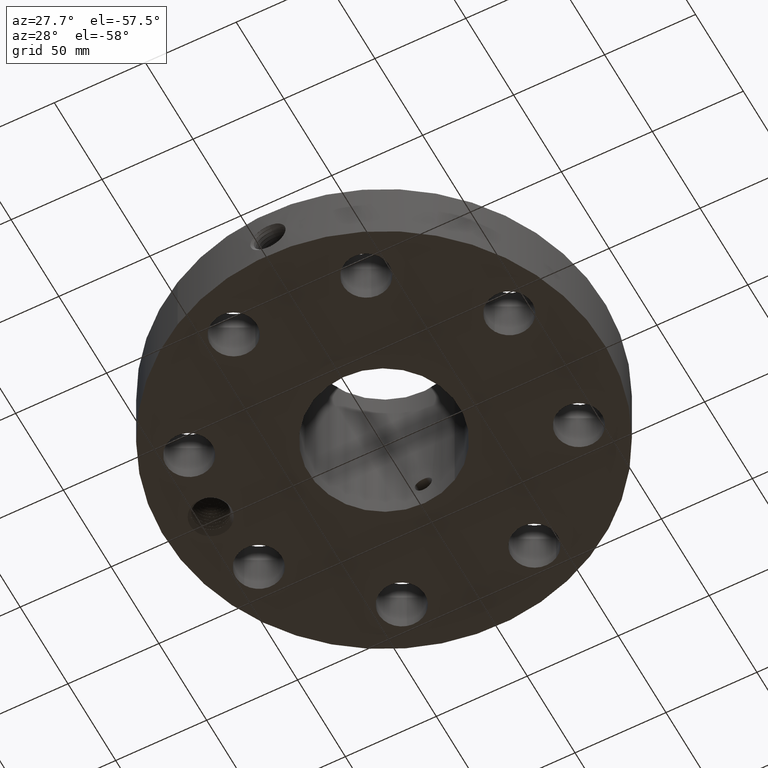
[diagram: clean part render]
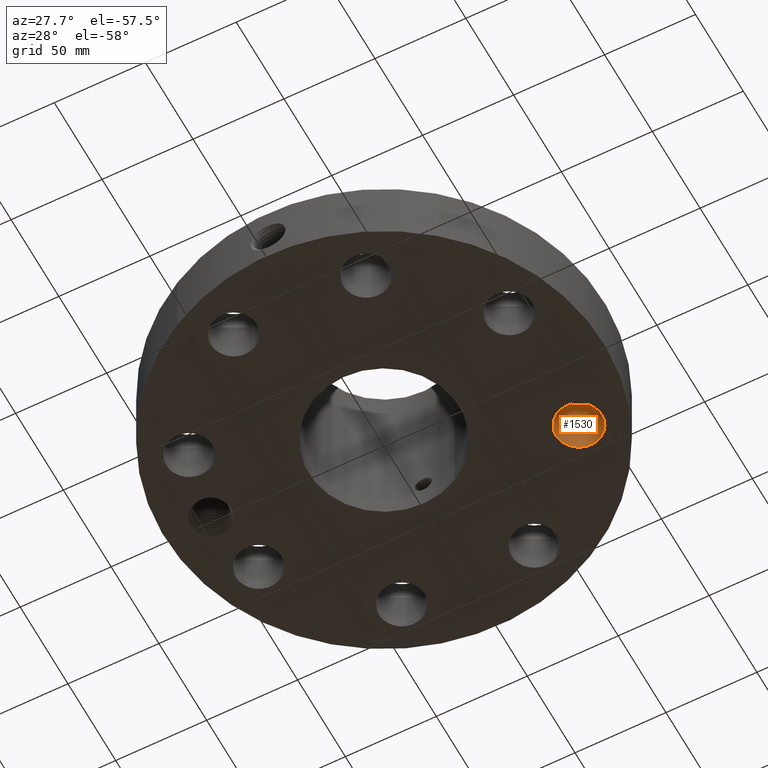
[diagram: same view with one face highlighted and labeled with its STEP entity id]
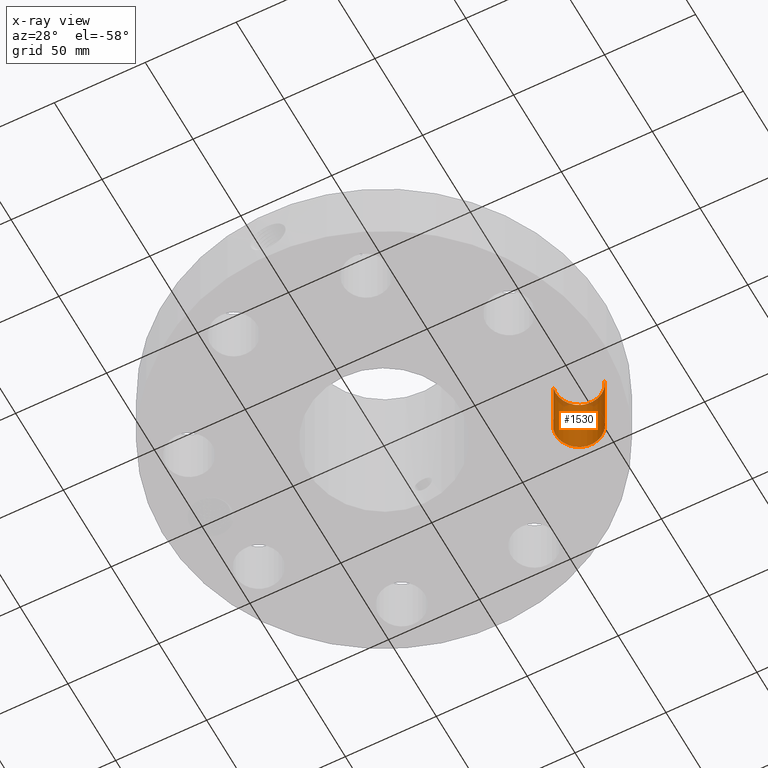
[diagram: x-ray of the same camera — body ghosted, the highlighted face saturated]
A machine part, auxiliary view. The second image highlights one B-rep face of the part: STEP entity #1530.
The next image is the same camera in x-ray: the body ghosted, the highlighted face saturated — about 8% of this face is hidden behind the body in this view.
In plain terms, the highlighted cylindrical surface (edge-blend (fillet) strip) has radius 12.7 mm, axis along (0, 0, -1).
Its self-contained STEP definition (entity closure, byte-faithful):
#356=AXIS2_PLACEMENT_3D('Circle Axis2P3D',#354,#355,$) ;
#670=AXIS2_PLACEMENT_3D('Circle Axis2P3D',#668,#669,$) ;
#1512=AXIS2_PLACEMENT_3D('Cylinder Axis2P3D',#1509,#1510,#1511) ;
#354=CARTESIAN_POINT('Axis2P3D Location',(3.46454824693,1.43506287137,0.250000000001)) ;
#358=CARTESIAN_POINT('Vertex',(2.98477343194,1.2942931058,0.250000000001)) ;
#360=CARTESIAN_POINT('Vertex',(3.94432306193,1.57583263695,0.250000000001)) ;
#663=CARTESIAN_POINT('Vertex',(3.94432306193,1.57583263695,1.75000000001)) ;
#665=CARTESIAN_POINT('Vertex',(2.98477343194,1.2942931058,1.75000000001)) ;
#668=CARTESIAN_POINT('Axis2P3D Location',(3.46454824693,1.43506287137,1.75000000001)) ;
#1509=CARTESIAN_POINT('Axis2P3D Location',(3.46454824693,1.43506287137,1.74606299213)) ;
#1514=CARTESIAN_POINT('Line Origine',(2.98477343194,1.2942931058,1.)) ;
#1519=CARTESIAN_POINT('Line Origine',(3.94432306193,1.57583263695,1.)) ;
#355=DIRECTION('Axis2P3D Direction',(0.,0.,-0.0393700787402)) ;
#669=DIRECTION('Axis2P3D Direction',(0.,0.,-0.0393700787402)) ;
#1510=DIRECTION('Axis2P3D Direction',(0.,0.,-0.0393700787402)) ;
#1511=DIRECTION('Axis2P3D XDirection',(0.0377775444876,0.0110842335096,0.)) ;
#1515=DIRECTION('Vector Direction',(0.,0.,-0.0393700787402)) ;
#1520=DIRECTION('Vector Direction',(0.,0.,-0.0393700787402)) ;
#1516=VECTOR('Line Direction',#1515,0.0393700787402) ;
#1521=VECTOR('Line Direction',#1520,0.0393700787402) ;
#1525=ORIENTED_EDGE('',*,*,#1518,.F.) ;
#1526=ORIENTED_EDGE('',*,*,#362,.T.) ;
#1527=ORIENTED_EDGE('',*,*,#1523,.T.) ;
#1528=ORIENTED_EDGE('',*,*,#672,.F.) ;
#1530=ADVANCED_FACE('PartBody',(#1529),#1513,.F.) ;
#357=CIRCLE('generated circle',#356,0.500000000002) ;
#671=CIRCLE('generated circle',#670,0.500000000002) ;
#1513=CYLINDRICAL_SURFACE('generated cylinder',#1512,0.500000000002) ;
#362=EDGE_CURVE('',#359,#361,#357,.T.) ;
#672=EDGE_CURVE('',#666,#664,#671,.T.) ;
#1518=EDGE_CURVE('',#359,#666,#1517,.F.) ;
#1523=EDGE_CURVE('',#361,#664,#1522,.F.) ;
#1524=EDGE_LOOP('',(#1525,#1526,#1527,#1528)) ;
#1529=FACE_OUTER_BOUND('',#1524,.T.) ;
#1517=LINE('Line',#1514,#1516) ;
#1522=LINE('Line',#1519,#1521) ;
#359=VERTEX_POINT('',#358) ;
#361=VERTEX_POINT('',#360) ;
#664=VERTEX_POINT('',#663) ;
#666=VERTEX_POINT('',#665) ;